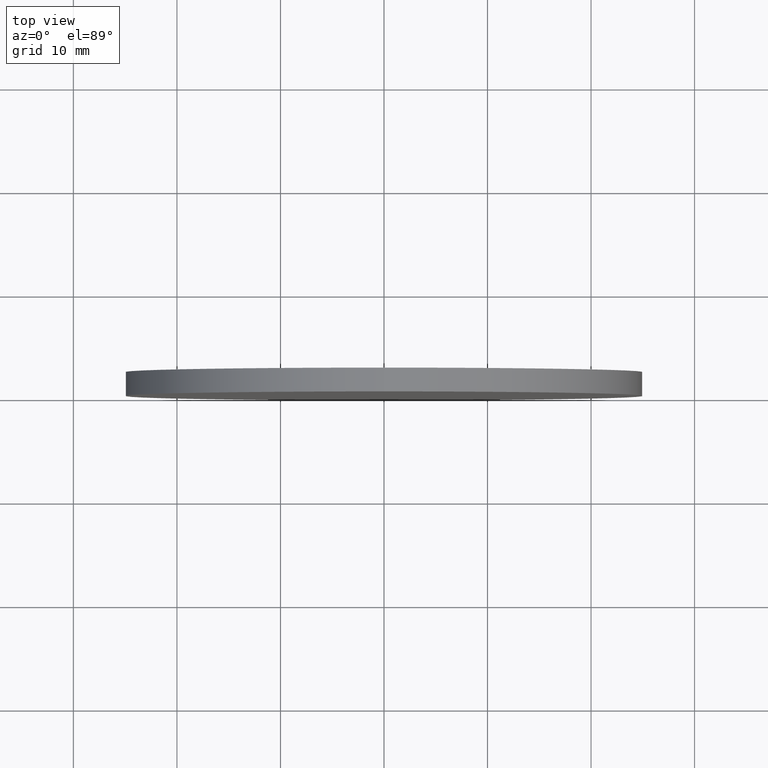
[diagram: clean part render]
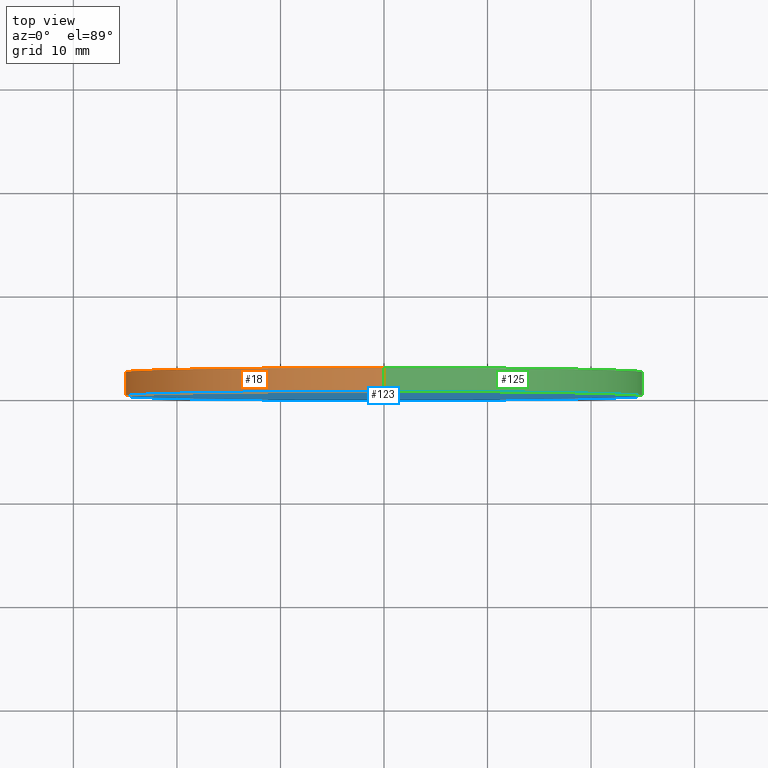
[diagram: same view with three faces highlighted in distinct colors, each labeled with its STEP entity id]
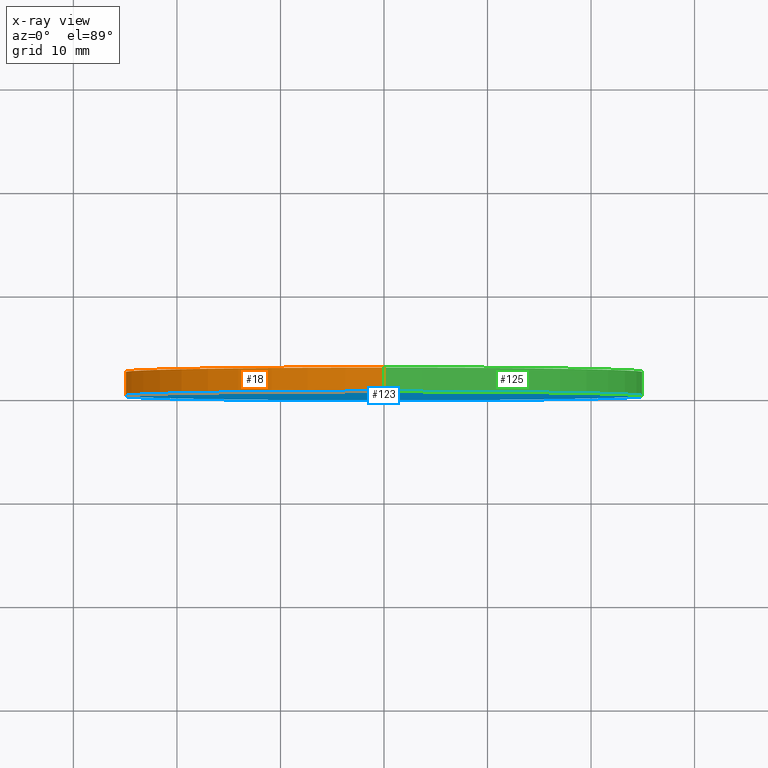
[diagram: x-ray of the same camera — body ghosted, the three highlighted faces saturated]
A machine part, top view with three faces highlighted in distinct colors.
The next image is the same camera in x-ray (body ghosted, the three faces saturated) — at least one of them is partly hidden behind the body in this view.
Their STEP definitions:

[orange] entity #18 — the highlighted cylindrical surface (partial cylindrical patch) has radius 25 mm, axis along (-0, -1, -0).
#3 = VECTOR ( 'NONE', #41, 1000.000000000000000 ) ;
#4 = CARTESIAN_POINT ( 'NONE',  ( 0.0000000000000000000, 2.299999999999999800, 0.0000000000000000000 ) ) ;
#5 = CARTESIAN_POINT ( 'NONE',  ( 0.0000000000000000000, 2.299999999999999800, 0.0000000000000000000 ) ) ;
#11 = EDGE_CURVE ( 'NONE', #98, #109, #140, .T. ) ;
#12 = AXIS2_PLACEMENT_3D ( 'NONE', #22, #34, #15 ) ;
#13 = VERTEX_POINT ( 'NONE', #107 ) ;
#15 = DIRECTION ( 'NONE',  ( 0.0000000000000000000, 0.0000000000000000000, 1.000000000000000000 ) ) ;
#18 = ADVANCED_FACE ( 'NONE', ( #93 ), #28, .T. ) ;
#19 = AXIS2_PLACEMENT_3D ( 'NONE', #5, #112, #50 ) ;
#20 = EDGE_LOOP ( 'NONE', ( #79, #42, #39, #54 ) ) ;
#22 = CARTESIAN_POINT ( 'NONE',  ( 0.0000000000000000000, 0.0000000000000000000, 0.0000000000000000000 ) ) ;
#25 = AXIS2_PLACEMENT_3D ( 'NONE', #4, #95, #138 ) ;
#28 = CYLINDRICAL_SURFACE ( 'NONE', #19, 25.00000000000000000 ) ;
#34 = DIRECTION ( 'NONE',  ( 0.0000000000000000000, 1.000000000000000000, 0.0000000000000000000 ) ) ;
#39 = ORIENTED_EDGE ( 'NONE', *, *, #102, .T. ) ;
#41 = DIRECTION ( 'NONE',  ( -0.0000000000000000000, -1.000000000000000000, -0.0000000000000000000 ) ) ;
#42 = ORIENTED_EDGE ( 'NONE', *, *, #67, .F. ) ;
#48 = CARTESIAN_POINT ( 'NONE',  ( 0.0000000000000000000, 0.0000000000000000000, -25.00000000000000000 ) ) ;
#50 = DIRECTION ( 'NONE',  ( 0.0000000000000000000, 0.0000000000000000000, -1.000000000000000000 ) ) ;
#54 = ORIENTED_EDGE ( 'NONE', *, *, #116, .T. ) ;
#60 = LINE ( 'NONE', #81, #87 ) ;
#65 = CIRCLE ( 'NONE', #12, 25.00000000000000000 ) ;
#67 = EDGE_CURVE ( 'NONE', #13, #98, #68, .T. ) ;
#68 = CIRCLE ( 'NONE', #25, 25.00000000000000000 ) ;
#79 = ORIENTED_EDGE ( 'NONE', *, *, #11, .F. ) ;
#81 = CARTESIAN_POINT ( 'NONE',  ( 0.0000000000000000000, 2.299999999999999800, -25.00000000000000000 ) ) ;
#87 = VECTOR ( 'NONE', #131, 1000.000000000000000 ) ;
#90 = CARTESIAN_POINT ( 'NONE',  ( 3.061616997868383000E-015, 2.299999999999999800, 25.00000000000000000 ) ) ;
#93 = FACE_OUTER_BOUND ( 'NONE', #20, .T. ) ;
#95 = DIRECTION ( 'NONE',  ( 0.0000000000000000000, 1.000000000000000000, 0.0000000000000000000 ) ) ;
#98 = VERTEX_POINT ( 'NONE', #90 ) ;
#102 = EDGE_CURVE ( 'NONE', #13, #104, #60, .T. ) ;
#104 = VERTEX_POINT ( 'NONE', #48 ) ;
#107 = CARTESIAN_POINT ( 'NONE',  ( 0.0000000000000000000, 2.299999999999999800, -25.00000000000000000 ) ) ;
#109 = VERTEX_POINT ( 'NONE', #119 ) ;
#112 = DIRECTION ( 'NONE',  ( -0.0000000000000000000, -1.000000000000000000, -0.0000000000000000000 ) ) ;
#116 = EDGE_CURVE ( 'NONE', #104, #109, #65, .T. ) ;
#119 = CARTESIAN_POINT ( 'NONE',  ( 3.061616997868383000E-015, 0.0000000000000000000, 25.00000000000000000 ) ) ;
#120 = CARTESIAN_POINT ( 'NONE',  ( 3.061616997868383000E-015, 2.299999999999999800, 25.00000000000000000 ) ) ;
#131 = DIRECTION ( 'NONE',  ( -0.0000000000000000000, -1.000000000000000000, -0.0000000000000000000 ) ) ;
#138 = DIRECTION ( 'NONE',  ( 0.0000000000000000000, 0.0000000000000000000, 1.000000000000000000 ) ) ;
#140 = LINE ( 'NONE', #120, #3 ) ;

[blue] entity #123 — the highlighted planar face has unit normal (0, 1, 0).
#8 = CARTESIAN_POINT ( 'NONE',  ( 0.0000000000000000000, 0.0000000000000000000, 0.0000000000000000000 ) ) ;
#12 = AXIS2_PLACEMENT_3D ( 'NONE', #22, #34, #15 ) ;
#15 = DIRECTION ( 'NONE',  ( 0.0000000000000000000, 0.0000000000000000000, 1.000000000000000000 ) ) ;
#22 = CARTESIAN_POINT ( 'NONE',  ( 0.0000000000000000000, 0.0000000000000000000, 0.0000000000000000000 ) ) ;
#29 = CARTESIAN_POINT ( 'NONE',  ( 0.0000000000000000000, 0.0000000000000000000, 0.0000000000000000000 ) ) ;
#31 = EDGE_CURVE ( 'NONE', #109, #104, #113, .T. ) ;
#33 = EDGE_LOOP ( 'NONE', ( #83, #122 ) ) ;
#34 = DIRECTION ( 'NONE',  ( 0.0000000000000000000, 1.000000000000000000, 0.0000000000000000000 ) ) ;
#40 = DIRECTION ( 'NONE',  ( 0.0000000000000000000, 1.000000000000000000, 0.0000000000000000000 ) ) ;
#44 = AXIS2_PLACEMENT_3D ( 'NONE', #8, #58, #137 ) ;
#48 = CARTESIAN_POINT ( 'NONE',  ( 0.0000000000000000000, 0.0000000000000000000, -25.00000000000000000 ) ) ;
#58 = DIRECTION ( 'NONE',  ( 0.0000000000000000000, 1.000000000000000000, 0.0000000000000000000 ) ) ;
#65 = CIRCLE ( 'NONE', #12, 25.00000000000000000 ) ;
#69 = DIRECTION ( 'NONE',  ( 0.0000000000000000000, 0.0000000000000000000, 1.000000000000000000 ) ) ;
#70 = FACE_OUTER_BOUND ( 'NONE', #33, .T. ) ;
#83 = ORIENTED_EDGE ( 'NONE', *, *, #116, .F. ) ;
#100 = AXIS2_PLACEMENT_3D ( 'NONE', #29, #40, #69 ) ;
#101 = PLANE ( 'NONE',  #44 ) ;
#104 = VERTEX_POINT ( 'NONE', #48 ) ;
#109 = VERTEX_POINT ( 'NONE', #119 ) ;
#113 = CIRCLE ( 'NONE', #100, 25.00000000000000000 ) ;
#116 = EDGE_CURVE ( 'NONE', #104, #109, #65, .T. ) ;
#119 = CARTESIAN_POINT ( 'NONE',  ( 3.061616997868383000E-015, 0.0000000000000000000, 25.00000000000000000 ) ) ;
#122 = ORIENTED_EDGE ( 'NONE', *, *, #31, .F. ) ;
#123 = ADVANCED_FACE ( 'NONE', ( #70 ), #101, .F. ) ;
#137 = DIRECTION ( 'NONE',  ( 0.0000000000000000000, -0.0000000000000000000, 1.000000000000000000 ) ) ;

[green] entity #125 — the highlighted cylindrical surface (partial cylindrical patch) has radius 25 mm, axis along (-0, -1, -0).
#1 = ORIENTED_EDGE ( 'NONE', *, *, #31, .T. ) ;
#3 = VECTOR ( 'NONE', #41, 1000.000000000000000 ) ;
#9 = ORIENTED_EDGE ( 'NONE', *, *, #51, .F. ) ;
#11 = EDGE_CURVE ( 'NONE', #98, #109, #140, .T. ) ;
#13 = VERTEX_POINT ( 'NONE', #107 ) ;
#27 = AXIS2_PLACEMENT_3D ( 'NONE', #46, #62, #72 ) ;
#29 = CARTESIAN_POINT ( 'NONE',  ( 0.0000000000000000000, 0.0000000000000000000, 0.0000000000000000000 ) ) ;
#31 = EDGE_CURVE ( 'NONE', #109, #104, #113, .T. ) ;
#36 = CARTESIAN_POINT ( 'NONE',  ( 0.0000000000000000000, 2.299999999999999800, 0.0000000000000000000 ) ) ;
#40 = DIRECTION ( 'NONE',  ( 0.0000000000000000000, 1.000000000000000000, 0.0000000000000000000 ) ) ;
#41 = DIRECTION ( 'NONE',  ( -0.0000000000000000000, -1.000000000000000000, -0.0000000000000000000 ) ) ;
#43 = EDGE_LOOP ( 'NONE', ( #9, #132, #1, #118 ) ) ;
#46 = CARTESIAN_POINT ( 'NONE',  ( 0.0000000000000000000, 2.299999999999999800, 0.0000000000000000000 ) ) ;
#48 = CARTESIAN_POINT ( 'NONE',  ( 0.0000000000000000000, 0.0000000000000000000, -25.00000000000000000 ) ) ;
#51 = EDGE_CURVE ( 'NONE', #98, #13, #55, .T. ) ;
#52 = CYLINDRICAL_SURFACE ( 'NONE', #27, 25.00000000000000000 ) ;
#55 = CIRCLE ( 'NONE', #66, 25.00000000000000000 ) ;
#60 = LINE ( 'NONE', #81, #87 ) ;
#62 = DIRECTION ( 'NONE',  ( -0.0000000000000000000, -1.000000000000000000, -0.0000000000000000000 ) ) ;
#63 = DIRECTION ( 'NONE',  ( 0.0000000000000000000, 0.0000000000000000000, 1.000000000000000000 ) ) ;
#66 = AXIS2_PLACEMENT_3D ( 'NONE', #36, #139, #63 ) ;
#69 = DIRECTION ( 'NONE',  ( 0.0000000000000000000, 0.0000000000000000000, 1.000000000000000000 ) ) ;
#72 = DIRECTION ( 'NONE',  ( 0.0000000000000000000, 0.0000000000000000000, -1.000000000000000000 ) ) ;
#76 = FACE_OUTER_BOUND ( 'NONE', #43, .T. ) ;
#81 = CARTESIAN_POINT ( 'NONE',  ( 0.0000000000000000000, 2.299999999999999800, -25.00000000000000000 ) ) ;
#87 = VECTOR ( 'NONE', #131, 1000.000000000000000 ) ;
#90 = CARTESIAN_POINT ( 'NONE',  ( 3.061616997868383000E-015, 2.299999999999999800, 25.00000000000000000 ) ) ;
#98 = VERTEX_POINT ( 'NONE', #90 ) ;
#100 = AXIS2_PLACEMENT_3D ( 'NONE', #29, #40, #69 ) ;
#102 = EDGE_CURVE ( 'NONE', #13, #104, #60, .T. ) ;
#104 = VERTEX_POINT ( 'NONE', #48 ) ;
#107 = CARTESIAN_POINT ( 'NONE',  ( 0.0000000000000000000, 2.299999999999999800, -25.00000000000000000 ) ) ;
#109 = VERTEX_POINT ( 'NONE', #119 ) ;
#113 = CIRCLE ( 'NONE', #100, 25.00000000000000000 ) ;
#118 = ORIENTED_EDGE ( 'NONE', *, *, #102, .F. ) ;
#119 = CARTESIAN_POINT ( 'NONE',  ( 3.061616997868383000E-015, 0.0000000000000000000, 25.00000000000000000 ) ) ;
#120 = CARTESIAN_POINT ( 'NONE',  ( 3.061616997868383000E-015, 2.299999999999999800, 25.00000000000000000 ) ) ;
#125 = ADVANCED_FACE ( 'NONE', ( #76 ), #52, .T. ) ;
#131 = DIRECTION ( 'NONE',  ( -0.0000000000000000000, -1.000000000000000000, -0.0000000000000000000 ) ) ;
#132 = ORIENTED_EDGE ( 'NONE', *, *, #11, .T. ) ;
#139 = DIRECTION ( 'NONE',  ( 0.0000000000000000000, 1.000000000000000000, 0.0000000000000000000 ) ) ;
#140 = LINE ( 'NONE', #120, #3 ) ;